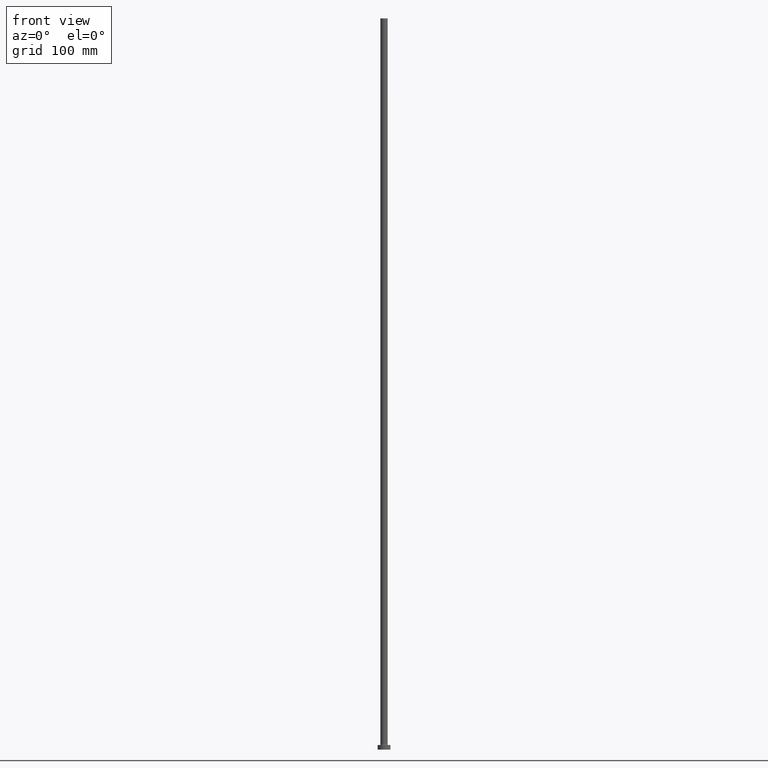
[diagram: clean part render]
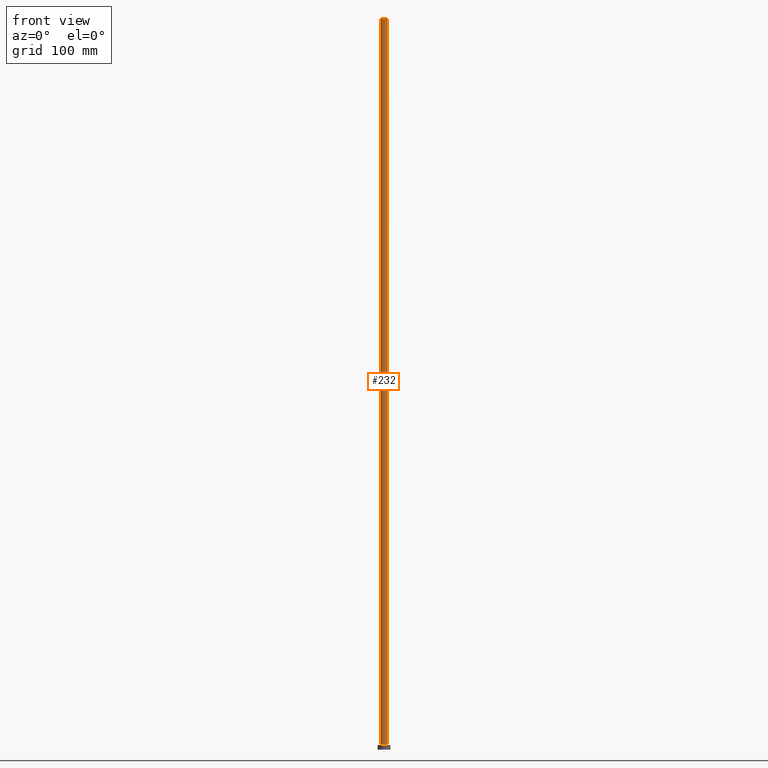
[diagram: same view with one face highlighted and labeled with its STEP entity id]
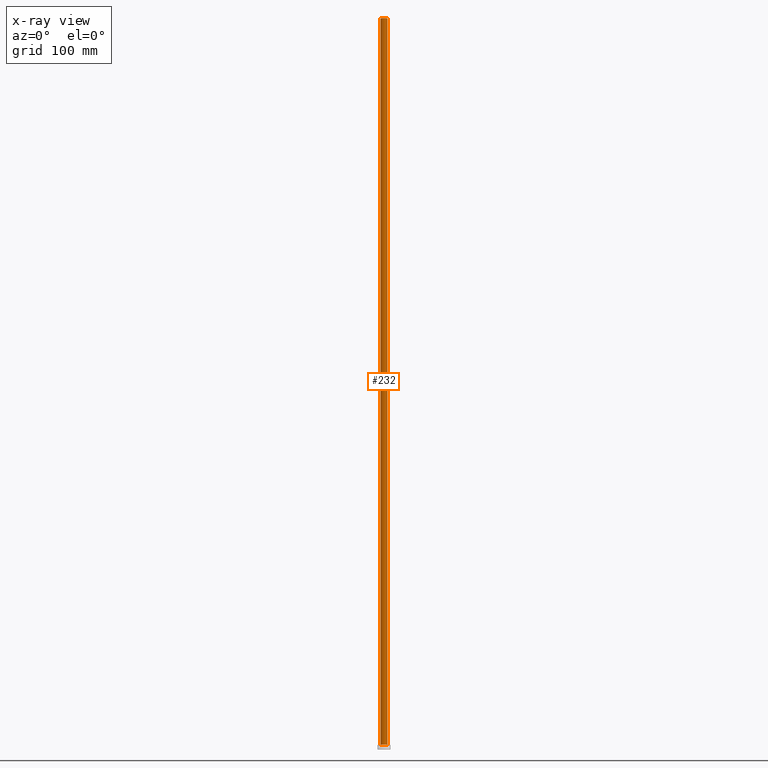
[diagram: x-ray of the same camera — body ghosted, the highlighted face saturated]
A machine part, front view. The second image highlights one B-rep face of the part: STEP entity #232.
The next image is the same camera in x-ray: the body ghosted, the highlighted face saturated — about 0% of this face is hidden behind the body in this view.
In plain terms, the highlighted cylindrical surface (edge-blend (fillet) strip) has radius 4 mm, axis along (-0, -0, -1).
Its self-contained STEP definition (entity closure, byte-faithful):
#15 = LINE ( 'NONE', #222, #440 ) ;
#23 = ORIENTED_EDGE ( 'NONE', *, *, #208, .F. ) ;
#50 = DIRECTION ( 'NONE',  ( 1.000000000000000000, 0.000000000000000000, 0.000000000000000000 ) ) ;
#51 = VERTEX_POINT ( 'NONE', #304 ) ;
#88 = FACE_OUTER_BOUND ( 'NONE', #130, .T. ) ;
#104 = CARTESIAN_POINT ( 'NONE',  ( 4.000000000000000000, 4.898587196589412829E-16, 5.499999999999949374 ) ) ;
#121 = DIRECTION ( 'NONE',  ( -0.000000000000000000, -0.000000000000000000, -1.000000000000000000 ) ) ;
#125 = AXIS2_PLACEMENT_3D ( 'NONE', #364, #143, #146 ) ;
#130 = EDGE_LOOP ( 'NONE', ( #23, #397, #355, #456 ) ) ;
#138 = EDGE_CURVE ( 'NONE', #441, #243, #15, .T. ) ;
#143 = DIRECTION ( 'NONE',  ( -0.000000000000000000, -0.000000000000000000, -1.000000000000000000 ) ) ;
#146 = DIRECTION ( 'NONE',  ( -1.000000000000000000, 0.000000000000000000, 0.000000000000000000 ) ) ;
#208 = EDGE_CURVE ( 'NONE', #51, #358, #349, .T. ) ;
#210 = CARTESIAN_POINT ( 'NONE',  ( 0.000000000000000000, 0.000000000000000000, 800.0000000000000000 ) ) ;
#222 = CARTESIAN_POINT ( 'NONE',  ( -4.000000000000000000, 0.000000000000000000, 800.0000000000000000 ) ) ;
#225 = CYLINDRICAL_SURFACE ( 'NONE', #125, 4.000000000000000000 ) ;
#232 = ADVANCED_FACE ( 'NONE', ( #88 ), #225, .T. ) ;
#238 = EDGE_CURVE ( 'NONE', #243, #358, #283, .T. ) ;
#243 = VERTEX_POINT ( 'NONE', #328 ) ;
#246 = DIRECTION ( 'NONE',  ( 0.000000000000000000, 0.000000000000000000, 1.000000000000000000 ) ) ;
#250 = CARTESIAN_POINT ( 'NONE',  ( -4.000000000000000000, 0.000000000000000000, 800.0000000000000000 ) ) ;
#254 = CARTESIAN_POINT ( 'NONE',  ( 0.000000000000000000, 0.000000000000000000, 5.499999999999949374 ) ) ;
#283 = CIRCLE ( 'NONE', #319, 4.000000000000000000 ) ;
#286 = DIRECTION ( 'NONE',  ( 0.000000000000000000, 0.000000000000000000, 1.000000000000000000 ) ) ;
#304 = CARTESIAN_POINT ( 'NONE',  ( 4.000000000000000000, 4.898587196589412829E-16, 800.0000000000000000 ) ) ;
#319 = AXIS2_PLACEMENT_3D ( 'NONE', #254, #286, #50 ) ;
#328 = CARTESIAN_POINT ( 'NONE',  ( -4.000000000000000000, 0.000000000000000000, 5.499999999999949374 ) ) ;
#336 = EDGE_CURVE ( 'NONE', #441, #51, #342, .T. ) ;
#342 = CIRCLE ( 'NONE', #373, 4.000000000000000000 ) ;
#349 = LINE ( 'NONE', #359, #368 ) ;
#355 = ORIENTED_EDGE ( 'NONE', *, *, #138, .T. ) ;
#358 = VERTEX_POINT ( 'NONE', #104 ) ;
#359 = CARTESIAN_POINT ( 'NONE',  ( 4.000000000000000000, 4.898587196589412829E-16, 800.0000000000000000 ) ) ;
#364 = CARTESIAN_POINT ( 'NONE',  ( 0.000000000000000000, 0.000000000000000000, 800.0000000000000000 ) ) ;
#367 = DIRECTION ( 'NONE',  ( -0.000000000000000000, -0.000000000000000000, -1.000000000000000000 ) ) ;
#368 = VECTOR ( 'NONE', #367, 1000.000000000000000 ) ;
#373 = AXIS2_PLACEMENT_3D ( 'NONE', #210, #246, #396 ) ;
#396 = DIRECTION ( 'NONE',  ( 1.000000000000000000, 0.000000000000000000, 0.000000000000000000 ) ) ;
#397 = ORIENTED_EDGE ( 'NONE', *, *, #336, .F. ) ;
#440 = VECTOR ( 'NONE', #121, 1000.000000000000000 ) ;
#441 = VERTEX_POINT ( 'NONE', #250 ) ;
#456 = ORIENTED_EDGE ( 'NONE', *, *, #238, .T. ) ;